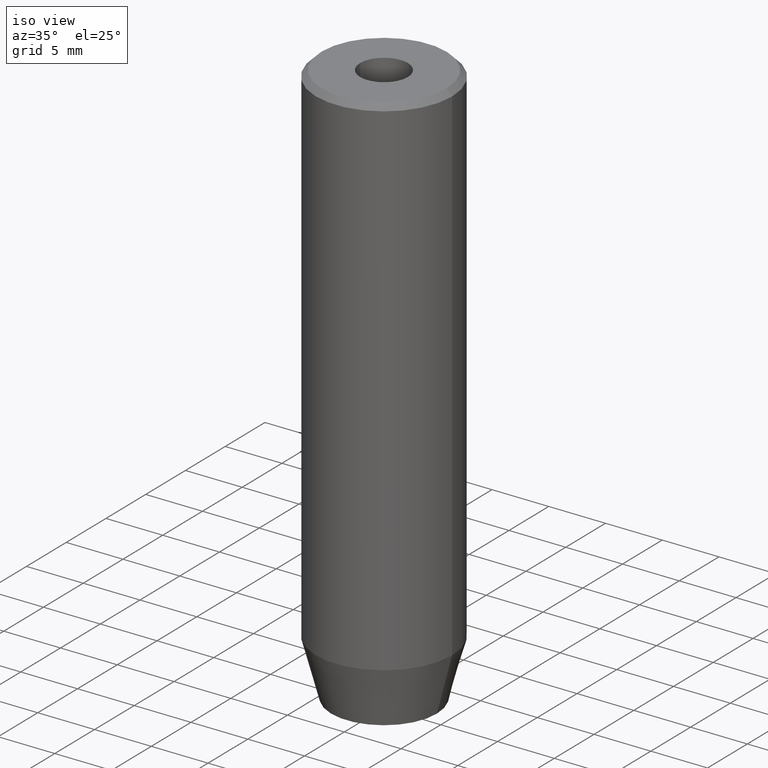
[diagram: clean part render]
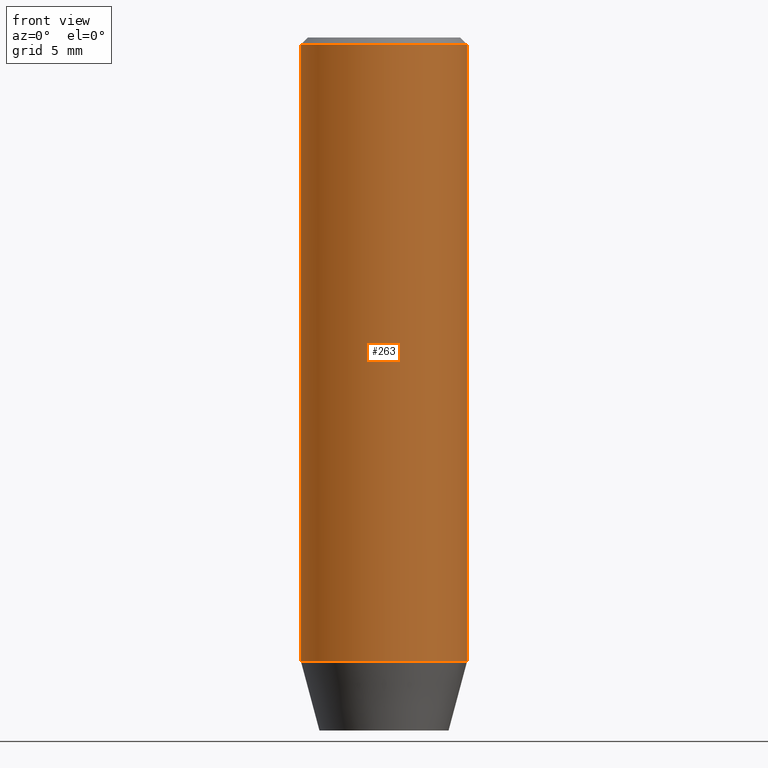
[diagram: tour spotlight — one face highlighted and labeled with its STEP entity id]
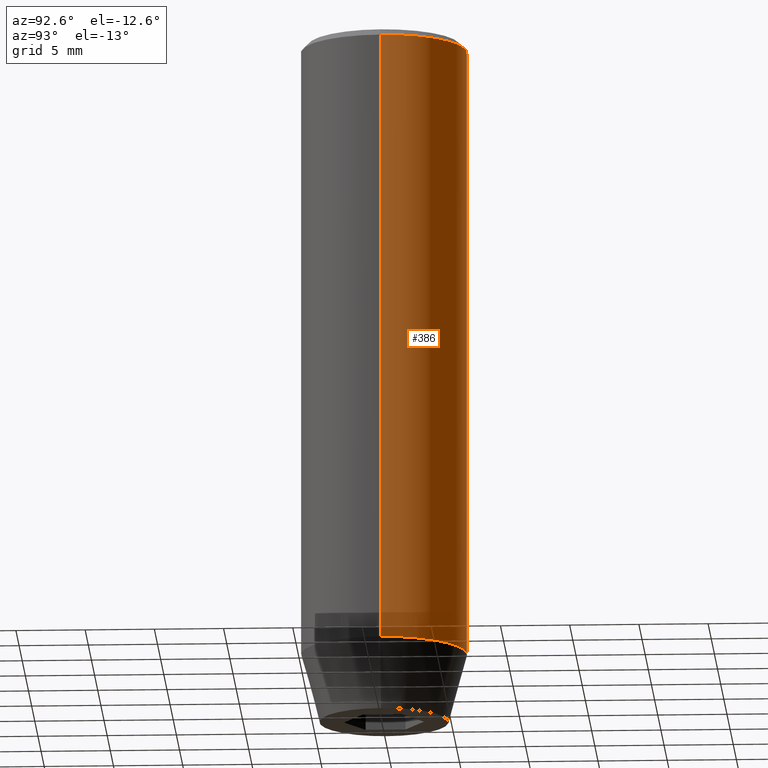
[diagram: tour spotlight — one face highlighted and labeled with its STEP entity id]
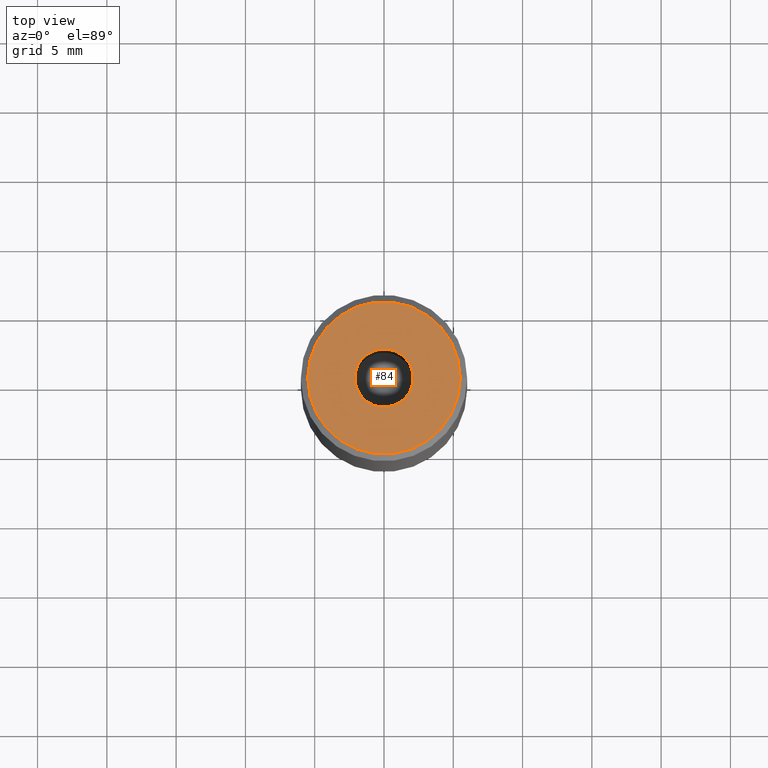
[diagram: tour spotlight — one face highlighted and labeled with its STEP entity id]
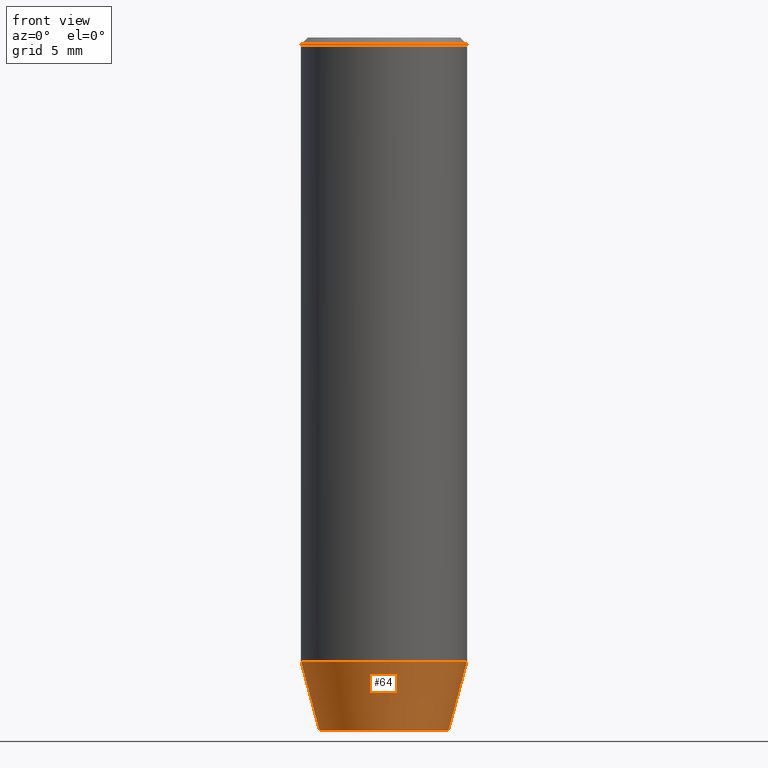
[diagram: tour spotlight — one face highlighted and labeled with its STEP entity id]
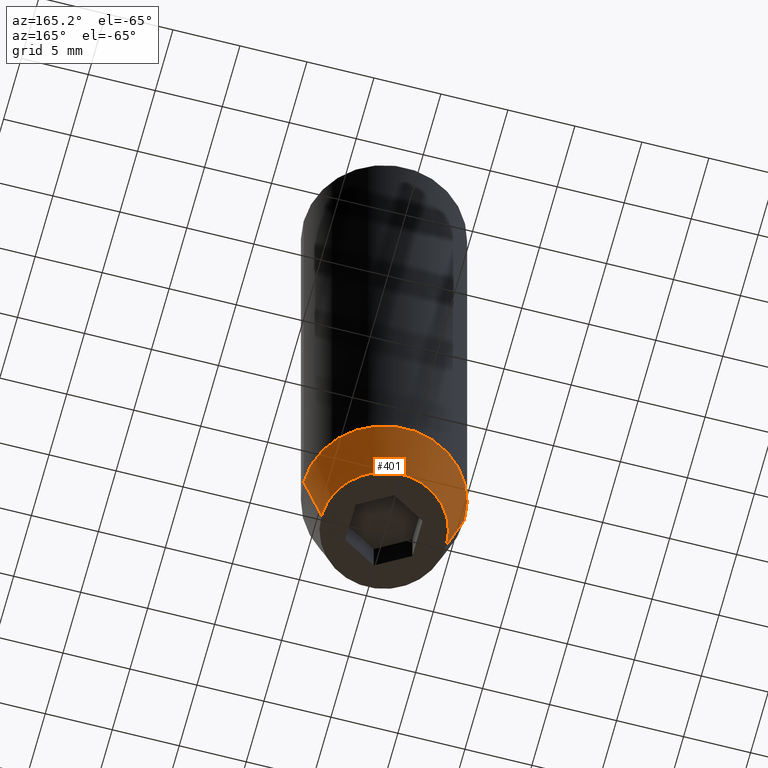
[diagram: tour spotlight — one face highlighted and labeled with its STEP entity id]
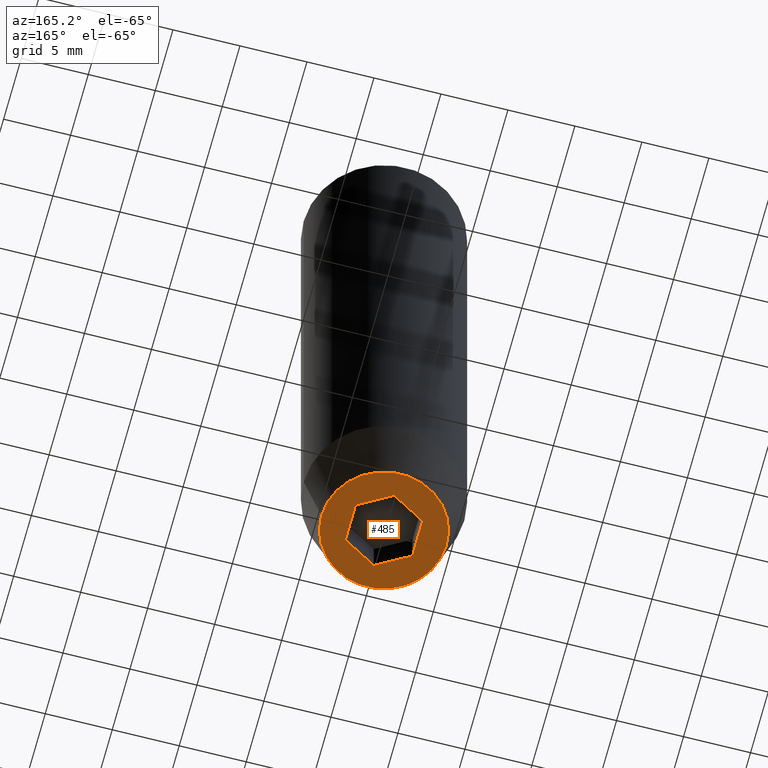
[diagram: tour spotlight — one face highlighted and labeled with its STEP entity id]
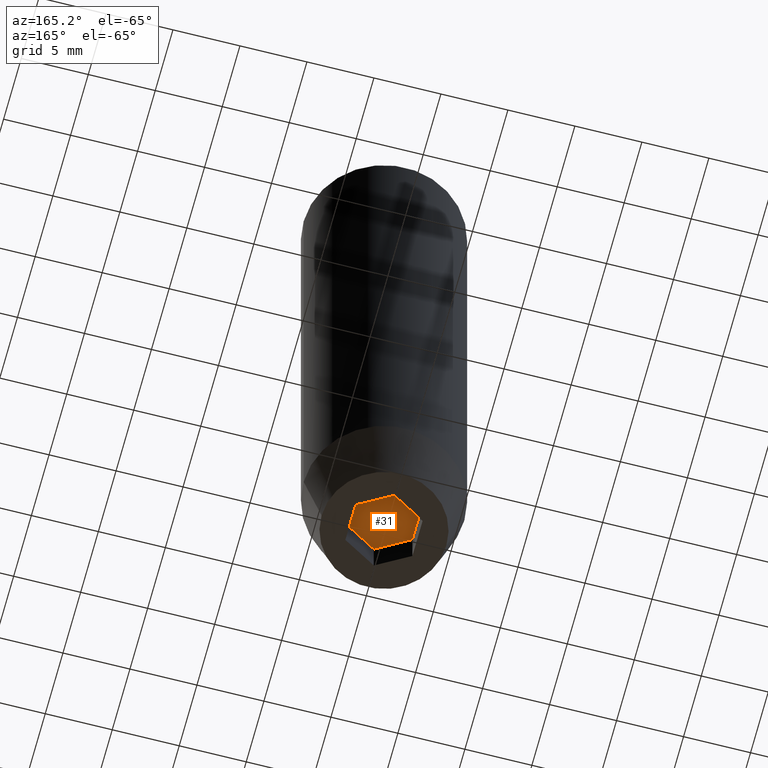
[diagram: tour spotlight — one face highlighted and labeled with its STEP entity id]
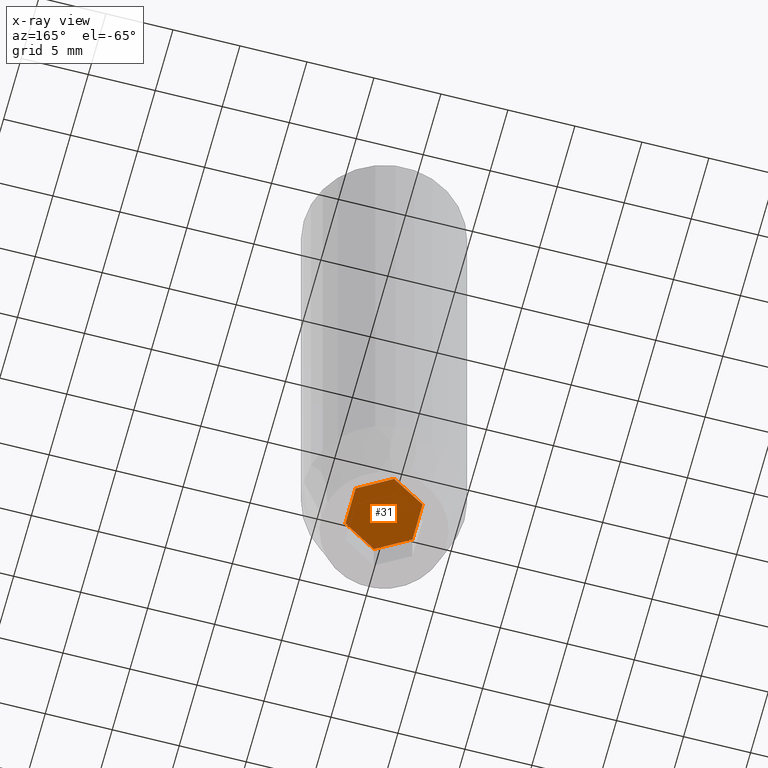
[diagram: x-ray of the same camera — body ghosted, this tour face saturated]
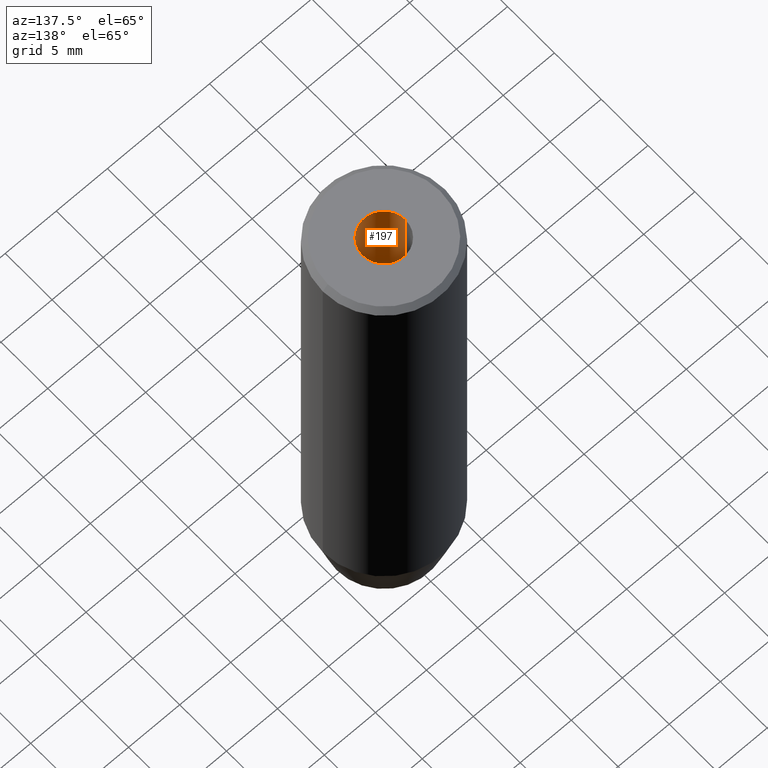
[diagram: tour spotlight — one face highlighted and labeled with its STEP entity id]
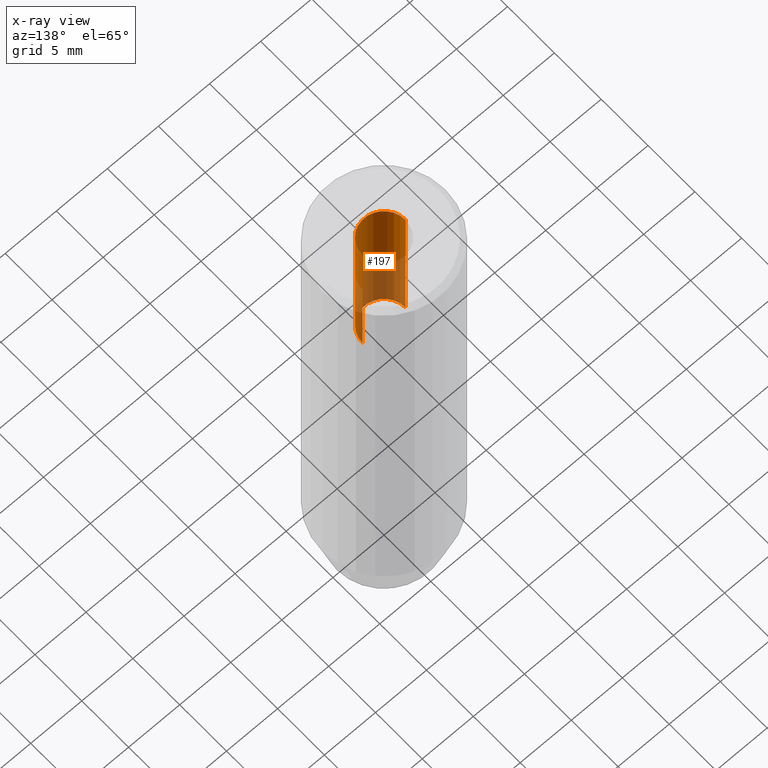
[diagram: x-ray of the same camera — body ghosted, this tour face saturated]
A machine part: a face-by-face anatomy tour. The part has 19 B-rep faces; the first image is the clean iso view, then the 8 largest visible faces are spotlighted one at a time (largest first), each with its STEP entity span.

Face 1 — front view, entity #263. In plain terms, the highlighted cylindrical surface (partial cylindrical patch) has radius 6 mm, axis along (-0, -0, 1).
Definition (entity closure, byte-faithful):
#1 = CARTESIAN_POINT ( 'NONE',  ( 0.000000000000000000, 0.000000000000000000, -45.00000000000000711 ) ) ;
#25 = VERTEX_POINT ( 'NONE', #429 ) ;
#41 = EDGE_CURVE ( 'NONE', #25, #370, #211, .T. ) ;
#49 = CIRCLE ( 'NONE', #129, 6.000000000000000000 ) ;
#51 = CARTESIAN_POINT ( 'NONE',  ( 0.000000000000000000, 0.000000000000000000, 0.000000000000000000 ) ) ;
#75 = AXIS2_PLACEMENT_3D ( 'NONE', #1, #186, #408 ) ;
#103 = CYLINDRICAL_SURFACE ( 'NONE', #538, 6.000000000000000000 ) ;
#112 = DIRECTION ( 'NONE',  ( 1.000000000000000000, 0.000000000000000000, 0.000000000000000000 ) ) ;
#124 = CARTESIAN_POINT ( 'NONE',  ( 0.000000000000000000, 0.000000000000000000, -0.5000000000000099920 ) ) ;
#129 = AXIS2_PLACEMENT_3D ( 'NONE', #124, #467, #112 ) ;
#176 = LINE ( 'NONE', #350, #514 ) ;
#186 = DIRECTION ( 'NONE',  ( -0.000000000000000000, -0.000000000000000000, 1.000000000000000000 ) ) ;
#188 = CARTESIAN_POINT ( 'NONE',  ( -6.000000000000000000, 7.347880794884119736E-16, -0.5000000000000099920 ) ) ;
#198 = VERTEX_POINT ( 'NONE', #578 ) ;
#208 = DIRECTION ( 'NONE',  ( -0.000000000000000000, -0.000000000000000000, 1.000000000000000000 ) ) ;
#211 = LINE ( 'NONE', #518, #234 ) ;
#234 = VECTOR ( 'NONE', #208, 1000.000000000000000 ) ;
#251 = ORIENTED_EDGE ( 'NONE', *, *, #510, .T. ) ;
#262 = ORIENTED_EDGE ( 'NONE', *, *, #379, .T. ) ;
#263 = ADVANCED_FACE ( 'NONE', ( #316 ), #103, .T. ) ;
#273 = ORIENTED_EDGE ( 'NONE', *, *, #395, .T. ) ;
#316 = FACE_OUTER_BOUND ( 'NONE', #453, .T. ) ;
#330 = CIRCLE ( 'NONE', #75, 6.000000000000000000 ) ;
#350 = CARTESIAN_POINT ( 'NONE',  ( 6.000000000000000000, 0.000000000000000000, 0.000000000000000000 ) ) ;
#370 = VERTEX_POINT ( 'NONE', #188 ) ;
#379 = EDGE_CURVE ( 'NONE', #25, #478, #330, .T. ) ;
#380 = CARTESIAN_POINT ( 'NONE',  ( 6.000000000000000000, 0.000000000000000000, -45.00000000000000711 ) ) ;
#395 = EDGE_CURVE ( 'NONE', #198, #370, #49, .T. ) ;
#405 = ORIENTED_EDGE ( 'NONE', *, *, #41, .F. ) ;
#408 = DIRECTION ( 'NONE',  ( 1.000000000000000000, 0.000000000000000000, 0.000000000000000000 ) ) ;
#429 = CARTESIAN_POINT ( 'NONE',  ( -6.000000000000000000, 7.347880794884119736E-16, -45.00000000000000711 ) ) ;
#450 = DIRECTION ( 'NONE',  ( 1.000000000000000000, 0.000000000000000000, 0.000000000000000000 ) ) ;
#453 = EDGE_LOOP ( 'NONE', ( #405, #262, #251, #273 ) ) ;
#455 = DIRECTION ( 'NONE',  ( -0.000000000000000000, -0.000000000000000000, 1.000000000000000000 ) ) ;
#467 = DIRECTION ( 'NONE',  ( 0.000000000000000000, 0.000000000000000000, -1.000000000000000000 ) ) ;
#478 = VERTEX_POINT ( 'NONE', #380 ) ;
#487 = DIRECTION ( 'NONE',  ( -0.000000000000000000, -0.000000000000000000, 1.000000000000000000 ) ) ;
#510 = EDGE_CURVE ( 'NONE', #478, #198, #176, .T. ) ;
#514 = VECTOR ( 'NONE', #487, 1000.000000000000000 ) ;
#518 = CARTESIAN_POINT ( 'NONE',  ( -6.000000000000000000, 7.347880794884119736E-16, 0.000000000000000000 ) ) ;
#538 = AXIS2_PLACEMENT_3D ( 'NONE', #51, #455, #450 ) ;
#578 = CARTESIAN_POINT ( 'NONE',  ( 6.000000000000000000, 0.000000000000000000, -0.5000000000000099920 ) ) ;

Face 2 — auxiliary view, entity #386. In plain terms, the highlighted cylindrical surface (partial cylindrical patch) has radius 6 mm, axis along (-0, -0, 1).
Definition (entity closure, byte-faithful):
#2 = ORIENTED_EDGE ( 'NONE', *, *, #275, .T. ) ;
#11 = DIRECTION ( 'NONE',  ( 1.000000000000000000, 0.000000000000000000, 0.000000000000000000 ) ) ;
#19 = AXIS2_PLACEMENT_3D ( 'NONE', #543, #144, #321 ) ;
#25 = VERTEX_POINT ( 'NONE', #429 ) ;
#39 = CIRCLE ( 'NONE', #19, 6.000000000000000000 ) ;
#41 = EDGE_CURVE ( 'NONE', #25, #370, #211, .T. ) ;
#95 = FACE_OUTER_BOUND ( 'NONE', #360, .T. ) ;
#144 = DIRECTION ( 'NONE',  ( 0.000000000000000000, 0.000000000000000000, -1.000000000000000000 ) ) ;
#176 = LINE ( 'NONE', #350, #514 ) ;
#188 = CARTESIAN_POINT ( 'NONE',  ( -6.000000000000000000, 7.347880794884119736E-16, -0.5000000000000099920 ) ) ;
#190 = DIRECTION ( 'NONE',  ( -0.000000000000000000, -0.000000000000000000, 1.000000000000000000 ) ) ;
#192 = CIRCLE ( 'NONE', #378, 6.000000000000000000 ) ;
#195 = DIRECTION ( 'NONE',  ( -0.000000000000000000, -0.000000000000000000, 1.000000000000000000 ) ) ;
#198 = VERTEX_POINT ( 'NONE', #578 ) ;
#208 = DIRECTION ( 'NONE',  ( -0.000000000000000000, -0.000000000000000000, 1.000000000000000000 ) ) ;
#211 = LINE ( 'NONE', #518, #234 ) ;
#234 = VECTOR ( 'NONE', #208, 1000.000000000000000 ) ;
#257 = EDGE_CURVE ( 'NONE', #370, #198, #39, .T. ) ;
#272 = CARTESIAN_POINT ( 'NONE',  ( 0.000000000000000000, 0.000000000000000000, 0.000000000000000000 ) ) ;
#275 = EDGE_CURVE ( 'NONE', #478, #25, #192, .T. ) ;
#277 = CARTESIAN_POINT ( 'NONE',  ( 0.000000000000000000, 0.000000000000000000, -45.00000000000000711 ) ) ;
#280 = ORIENTED_EDGE ( 'NONE', *, *, #41, .T. ) ;
#314 = CYLINDRICAL_SURFACE ( 'NONE', #347, 6.000000000000000000 ) ;
#321 = DIRECTION ( 'NONE',  ( 1.000000000000000000, 0.000000000000000000, 0.000000000000000000 ) ) ;
#347 = AXIS2_PLACEMENT_3D ( 'NONE', #272, #190, #479 ) ;
#350 = CARTESIAN_POINT ( 'NONE',  ( 6.000000000000000000, 0.000000000000000000, 0.000000000000000000 ) ) ;
#360 = EDGE_LOOP ( 'NONE', ( #2, #280, #421, #504 ) ) ;
#370 = VERTEX_POINT ( 'NONE', #188 ) ;
#378 = AXIS2_PLACEMENT_3D ( 'NONE', #277, #195, #11 ) ;
#380 = CARTESIAN_POINT ( 'NONE',  ( 6.000000000000000000, 0.000000000000000000, -45.00000000000000711 ) ) ;
#386 = ADVANCED_FACE ( 'NONE', ( #95 ), #314, .T. ) ;
#421 = ORIENTED_EDGE ( 'NONE', *, *, #257, .T. ) ;
#429 = CARTESIAN_POINT ( 'NONE',  ( -6.000000000000000000, 7.347880794884119736E-16, -45.00000000000000711 ) ) ;
#478 = VERTEX_POINT ( 'NONE', #380 ) ;
#479 = DIRECTION ( 'NONE',  ( 1.000000000000000000, 0.000000000000000000, 0.000000000000000000 ) ) ;
#487 = DIRECTION ( 'NONE',  ( -0.000000000000000000, -0.000000000000000000, 1.000000000000000000 ) ) ;
#504 = ORIENTED_EDGE ( 'NONE', *, *, #510, .F. ) ;
#510 = EDGE_CURVE ( 'NONE', #478, #198, #176, .T. ) ;
#514 = VECTOR ( 'NONE', #487, 1000.000000000000000 ) ;
#518 = CARTESIAN_POINT ( 'NONE',  ( -6.000000000000000000, 7.347880794884119736E-16, 0.000000000000000000 ) ) ;
#543 = CARTESIAN_POINT ( 'NONE',  ( 0.000000000000000000, 0.000000000000000000, -0.5000000000000099920 ) ) ;
#578 = CARTESIAN_POINT ( 'NONE',  ( 6.000000000000000000, 0.000000000000000000, -0.5000000000000099920 ) ) ;

Face 3 — top view, entity #84. In plain terms, the highlighted planar face has unit normal (0, -0, 1).
Definition (entity closure, byte-faithful):
#27 = ORIENTED_EDGE ( 'NONE', *, *, #527, .T. ) ;
#32 = CIRCLE ( 'NONE', #224, 2.099999999999998757 ) ;
#44 = PLANE ( 'NONE',  #86 ) ;
#46 = CARTESIAN_POINT ( 'NONE',  ( 5.499999999999990230, 7.041719095097274963E-16, 0.000000000000000000 ) ) ;
#84 = ADVANCED_FACE ( 'NONE', ( #128, #488 ), #44, .T. ) ;
#86 = AXIS2_PLACEMENT_3D ( 'NONE', #581, #583, #486 ) ;
#108 = CARTESIAN_POINT ( 'NONE',  ( 0.000000000000000000, 0.000000000000000000, 0.000000000000000000 ) ) ;
#128 = FACE_BOUND ( 'NONE', #328, .T. ) ;
#156 = CIRCLE ( 'NONE', #256, 5.499999999999990230 ) ;
#173 = EDGE_CURVE ( 'NONE', #200, #454, #32, .T. ) ;
#175 = AXIS2_PLACEMENT_3D ( 'NONE', #108, #284, #461 ) ;
#177 = CARTESIAN_POINT ( 'NONE',  ( 2.099999999999998757, 0.000000000000000000, -1.990051048614449116E-16 ) ) ;
#189 = ORIENTED_EDGE ( 'NONE', *, *, #552, .F. ) ;
#193 = VERTEX_POINT ( 'NONE', #46 ) ;
#200 = VERTEX_POINT ( 'NONE', #177 ) ;
#224 = AXIS2_PLACEMENT_3D ( 'NONE', #265, #441, #311 ) ;
#240 = CARTESIAN_POINT ( 'NONE',  ( -2.099999999999998757, 2.571758278209439985E-16, -1.990051048614449116E-16 ) ) ;
#252 = CARTESIAN_POINT ( 'NONE',  ( 0.000000000000000000, 0.000000000000000000, 0.000000000000000000 ) ) ;
#256 = AXIS2_PLACEMENT_3D ( 'NONE', #252, #264, #439 ) ;
#264 = DIRECTION ( 'NONE',  ( -0.000000000000000000, -0.000000000000000000, 1.000000000000000000 ) ) ;
#265 = CARTESIAN_POINT ( 'NONE',  ( 0.000000000000000000, 0.000000000000000000, -1.990051048614449116E-16 ) ) ;
#267 = DIRECTION ( 'NONE',  ( 1.000000000000000000, 0.000000000000000000, 0.000000000000000000 ) ) ;
#284 = DIRECTION ( 'NONE',  ( -0.000000000000000000, -0.000000000000000000, 1.000000000000000000 ) ) ;
#300 = EDGE_LOOP ( 'NONE', ( #489, #27 ) ) ;
#301 = CIRCLE ( 'NONE', #175, 5.499999999999990230 ) ;
#311 = DIRECTION ( 'NONE',  ( 1.000000000000000000, 0.000000000000000000, 0.000000000000000000 ) ) ;
#328 = EDGE_LOOP ( 'NONE', ( #456, #189 ) ) ;
#342 = EDGE_CURVE ( 'NONE', #460, #193, #301, .T. ) ;
#355 = DIRECTION ( 'NONE',  ( -0.000000000000000000, -0.000000000000000000, 1.000000000000000000 ) ) ;
#399 = CARTESIAN_POINT ( 'NONE',  ( 0.000000000000000000, 0.000000000000000000, -1.990051048614449116E-16 ) ) ;
#404 = AXIS2_PLACEMENT_3D ( 'NONE', #399, #355, #267 ) ;
#439 = DIRECTION ( 'NONE',  ( 1.000000000000000000, 0.000000000000000000, 0.000000000000000000 ) ) ;
#441 = DIRECTION ( 'NONE',  ( -0.000000000000000000, -0.000000000000000000, 1.000000000000000000 ) ) ;
#454 = VERTEX_POINT ( 'NONE', #240 ) ;
#456 = ORIENTED_EDGE ( 'NONE', *, *, #173, .F. ) ;
#460 = VERTEX_POINT ( 'NONE', #517 ) ;
#461 = DIRECTION ( 'NONE',  ( 1.000000000000000000, 0.000000000000000000, 0.000000000000000000 ) ) ;
#462 = CIRCLE ( 'NONE', #404, 2.099999999999998757 ) ;
#486 = DIRECTION ( 'NONE',  ( 1.000000000000000000, 0.000000000000000000, 0.000000000000000000 ) ) ;
#488 = FACE_OUTER_BOUND ( 'NONE', #300, .T. ) ;
#489 = ORIENTED_EDGE ( 'NONE', *, *, #342, .T. ) ;
#517 = CARTESIAN_POINT ( 'NONE',  ( -5.499999999999990230, 0.000000000000000000, 0.000000000000000000 ) ) ;
#527 = EDGE_CURVE ( 'NONE', #193, #460, #156, .T. ) ;
#552 = EDGE_CURVE ( 'NONE', #454, #200, #462, .T. ) ;
#581 = CARTESIAN_POINT ( 'NONE',  ( 0.000000000000000000, 0.000000000000000000, 0.000000000000000000 ) ) ;
#583 = DIRECTION ( 'NONE',  ( 0.000000000000000000, -0.000000000000000000, 1.000000000000000000 ) ) ;

Face 4 — front view, entity #64. In plain terms, the highlighted conical surface has half-angle 15 deg.
Definition (entity closure, byte-faithful):
#1 = CARTESIAN_POINT ( 'NONE',  ( 0.000000000000000000, 0.000000000000000000, -45.00000000000000711 ) ) ;
#4 = DIRECTION ( 'NONE',  ( -0.000000000000000000, -0.000000000000000000, 1.000000000000000000 ) ) ;
#13 = ORIENTED_EDGE ( 'NONE', *, *, #379, .F. ) ;
#25 = VERTEX_POINT ( 'NONE', #429 ) ;
#64 = ADVANCED_FACE ( 'NONE', ( #157 ), #286, .T. ) ;
#75 = AXIS2_PLACEMENT_3D ( 'NONE', #1, #186, #408 ) ;
#89 = ORIENTED_EDGE ( 'NONE', *, *, #315, .T. ) ;
#113 = DIRECTION ( 'NONE',  ( 1.000000000000000000, 0.000000000000000000, 0.000000000000000000 ) ) ;
#115 = EDGE_LOOP ( 'NONE', ( #495, #89, #227, #13 ) ) ;
#142 = LINE ( 'NONE', #464, #451 ) ;
#147 = LINE ( 'NONE', #511, #430 ) ;
#152 = DIRECTION ( 'NONE',  ( -0.2588190451025214611, 3.169619151431774186E-17, 0.9659258262890679791 ) ) ;
#153 = AXIS2_PLACEMENT_3D ( 'NONE', #525, #290, #113 ) ;
#155 = CARTESIAN_POINT ( 'NONE',  ( -4.660254037844382857, 6.527522992771886302E-16, -50.00000000000000000 ) ) ;
#157 = FACE_OUTER_BOUND ( 'NONE', #115, .T. ) ;
#166 = CIRCLE ( 'NONE', #266, 4.660254037844382857 ) ;
#183 = VERTEX_POINT ( 'NONE', #351 ) ;
#186 = DIRECTION ( 'NONE',  ( -0.000000000000000000, -0.000000000000000000, 1.000000000000000000 ) ) ;
#196 = DIRECTION ( 'NONE',  ( 0.2588190451025214611, 0.000000000000000000, 0.9659258262890679791 ) ) ;
#227 = ORIENTED_EDGE ( 'NONE', *, *, #358, .T. ) ;
#229 = CARTESIAN_POINT ( 'NONE',  ( 0.000000000000000000, 0.000000000000000000, -50.00000000000000000 ) ) ;
#231 = DIRECTION ( 'NONE',  ( 1.000000000000000000, 0.000000000000000000, 0.000000000000000000 ) ) ;
#246 = EDGE_CURVE ( 'NONE', #468, #25, #147, .T. ) ;
#266 = AXIS2_PLACEMENT_3D ( 'NONE', #229, #4, #231 ) ;
#286 = CONICAL_SURFACE ( 'NONE', #153, 6.000000000000000000, 0.2617993877991502405 ) ;
#290 = DIRECTION ( 'NONE',  ( -0.000000000000000000, -0.000000000000000000, 1.000000000000000000 ) ) ;
#315 = EDGE_CURVE ( 'NONE', #468, #183, #166, .T. ) ;
#330 = CIRCLE ( 'NONE', #75, 6.000000000000000000 ) ;
#351 = CARTESIAN_POINT ( 'NONE',  ( 4.660254037844382857, 0.000000000000000000, -50.00000000000000000 ) ) ;
#358 = EDGE_CURVE ( 'NONE', #183, #478, #142, .T. ) ;
#379 = EDGE_CURVE ( 'NONE', #25, #478, #330, .T. ) ;
#380 = CARTESIAN_POINT ( 'NONE',  ( 6.000000000000000000, 0.000000000000000000, -45.00000000000000711 ) ) ;
#408 = DIRECTION ( 'NONE',  ( 1.000000000000000000, 0.000000000000000000, 0.000000000000000000 ) ) ;
#429 = CARTESIAN_POINT ( 'NONE',  ( -6.000000000000000000, 7.347880794884119736E-16, -45.00000000000000711 ) ) ;
#430 = VECTOR ( 'NONE', #152, 1000.000000000000114 ) ;
#451 = VECTOR ( 'NONE', #196, 1000.000000000000114 ) ;
#464 = CARTESIAN_POINT ( 'NONE',  ( 6.000000000000000000, 0.000000000000000000, -45.00000000000000711 ) ) ;
#468 = VERTEX_POINT ( 'NONE', #155 ) ;
#478 = VERTEX_POINT ( 'NONE', #380 ) ;
#495 = ORIENTED_EDGE ( 'NONE', *, *, #246, .F. ) ;
#511 = CARTESIAN_POINT ( 'NONE',  ( -6.000000000000000000, 7.347880794884119736E-16, -45.00000000000000711 ) ) ;
#525 = CARTESIAN_POINT ( 'NONE',  ( 0.000000000000000000, 0.000000000000000000, -45.00000000000000711 ) ) ;

Face 5 — auxiliary view, entity #401. In plain terms, the highlighted conical surface has half-angle 15 deg.
Definition (entity closure, byte-faithful):
#11 = DIRECTION ( 'NONE',  ( 1.000000000000000000, 0.000000000000000000, 0.000000000000000000 ) ) ;
#20 = ORIENTED_EDGE ( 'NONE', *, *, #275, .F. ) ;
#25 = VERTEX_POINT ( 'NONE', #429 ) ;
#47 = ORIENTED_EDGE ( 'NONE', *, *, #358, .F. ) ;
#142 = LINE ( 'NONE', #464, #451 ) ;
#145 = CIRCLE ( 'NONE', #471, 4.660254037844382857 ) ;
#147 = LINE ( 'NONE', #511, #430 ) ;
#152 = DIRECTION ( 'NONE',  ( -0.2588190451025214611, 3.169619151431774186E-17, 0.9659258262890679791 ) ) ;
#155 = CARTESIAN_POINT ( 'NONE',  ( -4.660254037844382857, 6.527522992771886302E-16, -50.00000000000000000 ) ) ;
#170 = EDGE_LOOP ( 'NONE', ( #493, #375, #20, #47 ) ) ;
#183 = VERTEX_POINT ( 'NONE', #351 ) ;
#192 = CIRCLE ( 'NONE', #378, 6.000000000000000000 ) ;
#195 = DIRECTION ( 'NONE',  ( -0.000000000000000000, -0.000000000000000000, 1.000000000000000000 ) ) ;
#196 = DIRECTION ( 'NONE',  ( 0.2588190451025214611, 0.000000000000000000, 0.9659258262890679791 ) ) ;
#204 = FACE_OUTER_BOUND ( 'NONE', #170, .T. ) ;
#246 = EDGE_CURVE ( 'NONE', #468, #25, #147, .T. ) ;
#247 = DIRECTION ( 'NONE',  ( 1.000000000000000000, 0.000000000000000000, 0.000000000000000000 ) ) ;
#275 = EDGE_CURVE ( 'NONE', #478, #25, #192, .T. ) ;
#277 = CARTESIAN_POINT ( 'NONE',  ( 0.000000000000000000, 0.000000000000000000, -45.00000000000000711 ) ) ;
#293 = AXIS2_PLACEMENT_3D ( 'NONE', #524, #388, #417 ) ;
#294 = DIRECTION ( 'NONE',  ( -0.000000000000000000, -0.000000000000000000, 1.000000000000000000 ) ) ;
#351 = CARTESIAN_POINT ( 'NONE',  ( 4.660254037844382857, 0.000000000000000000, -50.00000000000000000 ) ) ;
#358 = EDGE_CURVE ( 'NONE', #183, #478, #142, .T. ) ;
#375 = ORIENTED_EDGE ( 'NONE', *, *, #246, .T. ) ;
#378 = AXIS2_PLACEMENT_3D ( 'NONE', #277, #195, #11 ) ;
#380 = CARTESIAN_POINT ( 'NONE',  ( 6.000000000000000000, 0.000000000000000000, -45.00000000000000711 ) ) ;
#388 = DIRECTION ( 'NONE',  ( -0.000000000000000000, -0.000000000000000000, 1.000000000000000000 ) ) ;
#401 = ADVANCED_FACE ( 'NONE', ( #204 ), #530, .T. ) ;
#417 = DIRECTION ( 'NONE',  ( 1.000000000000000000, 0.000000000000000000, 0.000000000000000000 ) ) ;
#418 = EDGE_CURVE ( 'NONE', #183, #468, #145, .T. ) ;
#429 = CARTESIAN_POINT ( 'NONE',  ( -6.000000000000000000, 7.347880794884119736E-16, -45.00000000000000711 ) ) ;
#430 = VECTOR ( 'NONE', #152, 1000.000000000000114 ) ;
#451 = VECTOR ( 'NONE', #196, 1000.000000000000114 ) ;
#464 = CARTESIAN_POINT ( 'NONE',  ( 6.000000000000000000, 0.000000000000000000, -45.00000000000000711 ) ) ;
#468 = VERTEX_POINT ( 'NONE', #155 ) ;
#471 = AXIS2_PLACEMENT_3D ( 'NONE', #477, #294, #247 ) ;
#477 = CARTESIAN_POINT ( 'NONE',  ( 0.000000000000000000, 0.000000000000000000, -50.00000000000000000 ) ) ;
#478 = VERTEX_POINT ( 'NONE', #380 ) ;
#493 = ORIENTED_EDGE ( 'NONE', *, *, #418, .T. ) ;
#511 = CARTESIAN_POINT ( 'NONE',  ( -6.000000000000000000, 7.347880794884119736E-16, -45.00000000000000711 ) ) ;
#524 = CARTESIAN_POINT ( 'NONE',  ( 0.000000000000000000, 0.000000000000000000, -45.00000000000000711 ) ) ;
#530 = CONICAL_SURFACE ( 'NONE', #293, 6.000000000000000000, 0.2617993877991502405 ) ;

Face 6 — auxiliary view, entity #485. In plain terms, the highlighted planar face has unit normal (0, 0, -1).
Definition (entity closure, byte-faithful):
#4 = DIRECTION ( 'NONE',  ( -0.000000000000000000, -0.000000000000000000, 1.000000000000000000 ) ) ;
#7 = VERTEX_POINT ( 'NONE', #560 ) ;
#8 = ORIENTED_EDGE ( 'NONE', *, *, #180, .F. ) ;
#24 = FACE_OUTER_BOUND ( 'NONE', #366, .T. ) ;
#38 = CARTESIAN_POINT ( 'NONE',  ( 1.250000000000000222, 2.165063509461096825, -50.00000000000000000 ) ) ;
#50 = VERTEX_POINT ( 'NONE', #566 ) ;
#54 = VERTEX_POINT ( 'NONE', #516 ) ;
#63 = ORIENTED_EDGE ( 'NONE', *, *, #121, .F. ) ;
#114 = EDGE_CURVE ( 'NONE', #54, #7, #532, .T. ) ;
#118 = VECTOR ( 'NONE', #572, 1000.000000000000114 ) ;
#121 = EDGE_CURVE ( 'NONE', #276, #54, #346, .T. ) ;
#125 = ORIENTED_EDGE ( 'NONE', *, *, #315, .F. ) ;
#126 = VERTEX_POINT ( 'NONE', #222 ) ;
#138 = AXIS2_PLACEMENT_3D ( 'NONE', #519, #310, #573 ) ;
#145 = CIRCLE ( 'NONE', #471, 4.660254037844382857 ) ;
#155 = CARTESIAN_POINT ( 'NONE',  ( -4.660254037844382857, 6.527522992771886302E-16, -50.00000000000000000 ) ) ;
#162 = PLANE ( 'NONE',  #138 ) ;
#166 = CIRCLE ( 'NONE', #266, 4.660254037844382857 ) ;
#171 = CARTESIAN_POINT ( 'NONE',  ( 1.249999999999999778, -2.165063509461096380, -50.00000000000000000 ) ) ;
#180 = EDGE_CURVE ( 'NONE', #50, #276, #528, .T. ) ;
#183 = VERTEX_POINT ( 'NONE', #351 ) ;
#187 = ORIENTED_EDGE ( 'NONE', *, *, #220, .F. ) ;
#203 = ORIENTED_EDGE ( 'NONE', *, *, #283, .F. ) ;
#206 = ORIENTED_EDGE ( 'NONE', *, *, #418, .F. ) ;
#220 = EDGE_CURVE ( 'NONE', #7, #126, #491, .T. ) ;
#222 = CARTESIAN_POINT ( 'NONE',  ( -2.500000000000000444, -1.443375672974064328, -50.00000000000000000 ) ) ;
#229 = CARTESIAN_POINT ( 'NONE',  ( 0.000000000000000000, 0.000000000000000000, -50.00000000000000000 ) ) ;
#231 = DIRECTION ( 'NONE',  ( 1.000000000000000000, 0.000000000000000000, 0.000000000000000000 ) ) ;
#247 = DIRECTION ( 'NONE',  ( 1.000000000000000000, 0.000000000000000000, 0.000000000000000000 ) ) ;
#254 = VECTOR ( 'NONE', #531, 1000.000000000000000 ) ;
#266 = AXIS2_PLACEMENT_3D ( 'NONE', #229, #4, #231 ) ;
#271 = LINE ( 'NONE', #411, #482 ) ;
#276 = VERTEX_POINT ( 'NONE', #500 ) ;
#283 = EDGE_CURVE ( 'NONE', #324, #50, #553, .T. ) ;
#294 = DIRECTION ( 'NONE',  ( -0.000000000000000000, -0.000000000000000000, 1.000000000000000000 ) ) ;
#309 = ORIENTED_EDGE ( 'NONE', *, *, #114, .F. ) ;
#310 = DIRECTION ( 'NONE',  ( 0.000000000000000000, 0.000000000000000000, -1.000000000000000000 ) ) ;
#315 = EDGE_CURVE ( 'NONE', #468, #183, #166, .T. ) ;
#324 = VERTEX_POINT ( 'NONE', #508 ) ;
#346 = LINE ( 'NONE', #435, #368 ) ;
#349 = DIRECTION ( 'NONE',  ( -0.8660254037844387076, -0.5000000000000001110, 0.000000000000000000 ) ) ;
#351 = CARTESIAN_POINT ( 'NONE',  ( 4.660254037844382857, 0.000000000000000000, -50.00000000000000000 ) ) ;
#359 = DIRECTION ( 'NONE',  ( 0.8660254037844385966, 0.5000000000000001110, 0.000000000000000000 ) ) ;
#366 = EDGE_LOOP ( 'NONE', ( #206, #125 ) ) ;
#368 = VECTOR ( 'NONE', #535, 1000.000000000000000 ) ;
#381 = EDGE_LOOP ( 'NONE', ( #203, #426, #187, #309, #63, #8 ) ) ;
#394 = VECTOR ( 'NONE', #359, 1000.000000000000000 ) ;
#411 = CARTESIAN_POINT ( 'NONE',  ( -2.500000000000000444, 0.000000000000000000, -50.00000000000000000 ) ) ;
#414 = DIRECTION ( 'NONE',  ( 0.000000000000000000, 1.000000000000000000, 0.000000000000000000 ) ) ;
#418 = EDGE_CURVE ( 'NONE', #183, #468, #145, .T. ) ;
#426 = ORIENTED_EDGE ( 'NONE', *, *, #579, .F. ) ;
#435 = CARTESIAN_POINT ( 'NONE',  ( 2.500000000000000000, 0.000000000000000000, -50.00000000000000000 ) ) ;
#446 = CARTESIAN_POINT ( 'NONE',  ( -1.249999999999999556, -2.165063509461096825, -50.00000000000000000 ) ) ;
#468 = VERTEX_POINT ( 'NONE', #155 ) ;
#471 = AXIS2_PLACEMENT_3D ( 'NONE', #477, #294, #247 ) ;
#477 = CARTESIAN_POINT ( 'NONE',  ( 0.000000000000000000, 0.000000000000000000, -50.00000000000000000 ) ) ;
#482 = VECTOR ( 'NONE', #414, 1000.000000000000000 ) ;
#485 = ADVANCED_FACE ( 'NONE', ( #559, #24 ), #162, .T. ) ;
#491 = LINE ( 'NONE', #446, #118 ) ;
#500 = CARTESIAN_POINT ( 'NONE',  ( 2.500000000000000000, 1.443375672974064328, -50.00000000000000000 ) ) ;
#508 = CARTESIAN_POINT ( 'NONE',  ( -2.500000000000000444, 1.443375672974064772, -50.00000000000000000 ) ) ;
#516 = CARTESIAN_POINT ( 'NONE',  ( 2.500000000000000000, -1.443375672974064106, -50.00000000000000000 ) ) ;
#519 = CARTESIAN_POINT ( 'NONE',  ( 0.000000000000000000, 4.660254037844382857, -50.00000000000000000 ) ) ;
#522 = VECTOR ( 'NONE', #349, 999.9999999999998863 ) ;
#528 = LINE ( 'NONE', #38, #254 ) ;
#531 = DIRECTION ( 'NONE',  ( 0.8660254037844385966, -0.5000000000000001110, 0.000000000000000000 ) ) ;
#532 = LINE ( 'NONE', #171, #522 ) ;
#535 = DIRECTION ( 'NONE',  ( 0.000000000000000000, -1.000000000000000000, 0.000000000000000000 ) ) ;
#551 = CARTESIAN_POINT ( 'NONE',  ( -1.250000000000000444, 2.165063509461097269, -50.00000000000000000 ) ) ;
#553 = LINE ( 'NONE', #551, #394 ) ;
#559 = FACE_BOUND ( 'NONE', #381, .T. ) ;
#560 = CARTESIAN_POINT ( 'NONE',  ( 0.000000000000000000, -2.886751345948128211, -50.00000000000000000 ) ) ;
#566 = CARTESIAN_POINT ( 'NONE',  ( -1.084202172485504434E-16, 2.886751345948129543, -50.00000000000000000 ) ) ;
#572 = DIRECTION ( 'NONE',  ( -0.8660254037844387076, 0.4999999999999998890, 0.000000000000000000 ) ) ;
#573 = DIRECTION ( 'NONE',  ( -1.000000000000000000, 0.000000000000000000, -0.000000000000000000 ) ) ;
#579 = EDGE_CURVE ( 'NONE', #126, #324, #271, .T. ) ;

Face 7 — auxiliary view, entity #31. An x-ray twin of the same camera follows (body ghosted, this face saturated) — the face is partly hidden behind the body. In plain terms, the highlighted planar face has unit normal (0, 0, -1).
Definition (entity closure, byte-faithful):
#5 = EDGE_LOOP ( 'NONE', ( #512, #327, #334, #270, #83, #542 ) ) ;
#6 = CARTESIAN_POINT ( 'NONE',  ( 2.500000000000000000, -1.443375672974064106, -47.20000000000000284 ) ) ;
#10 = AXIS2_PLACEMENT_3D ( 'NONE', #69, #248, #34 ) ;
#31 = ADVANCED_FACE ( 'NONE', ( #163 ), #480, .T. ) ;
#34 = DIRECTION ( 'NONE',  ( -1.000000000000000000, 0.000000000000000000, -0.000000000000000000 ) ) ;
#37 = LINE ( 'NONE', #261, #403 ) ;
#42 = CARTESIAN_POINT ( 'NONE',  ( -1.250000000000000444, 2.165063509461097269, -47.20000000000000284 ) ) ;
#66 = VECTOR ( 'NONE', #223, 1000.000000000000000 ) ;
#69 = CARTESIAN_POINT ( 'NONE',  ( 0.000000000000000000, 0.000000000000000000, -47.20000000000000284 ) ) ;
#79 = DIRECTION ( 'NONE',  ( 0.8660254037844385966, 0.5000000000000001110, 0.000000000000000000 ) ) ;
#83 = ORIENTED_EDGE ( 'NONE', *, *, #100, .T. ) ;
#85 = CARTESIAN_POINT ( 'NONE',  ( -2.500000000000000444, -1.443375672974064328, -47.20000000000000284 ) ) ;
#87 = CARTESIAN_POINT ( 'NONE',  ( -1.084202172485504434E-16, 2.886751345948129543, -47.20000000000000284 ) ) ;
#100 = EDGE_CURVE ( 'NONE', #554, #161, #37, .T. ) ;
#127 = CARTESIAN_POINT ( 'NONE',  ( -2.500000000000000444, 1.443375672974064772, -47.20000000000000284 ) ) ;
#132 = EDGE_CURVE ( 'NONE', #161, #570, #182, .T. ) ;
#141 = LINE ( 'NONE', #42, #274 ) ;
#150 = DIRECTION ( 'NONE',  ( 0.000000000000000000, -1.000000000000000000, 0.000000000000000000 ) ) ;
#161 = VERTEX_POINT ( 'NONE', #85 ) ;
#163 = FACE_OUTER_BOUND ( 'NONE', #5, .T. ) ;
#164 = EDGE_CURVE ( 'NONE', #570, #549, #141, .T. ) ;
#179 = CARTESIAN_POINT ( 'NONE',  ( 1.249999999999999778, -2.165063509461096380, -47.20000000000000284 ) ) ;
#182 = LINE ( 'NONE', #400, #66 ) ;
#199 = CARTESIAN_POINT ( 'NONE',  ( 1.250000000000000222, 2.165063509461096825, -47.20000000000000284 ) ) ;
#205 = EDGE_CURVE ( 'NONE', #385, #554, #398, .T. ) ;
#223 = DIRECTION ( 'NONE',  ( 0.000000000000000000, 1.000000000000000000, 0.000000000000000000 ) ) ;
#239 = LINE ( 'NONE', #199, #567 ) ;
#248 = DIRECTION ( 'NONE',  ( 0.000000000000000000, 0.000000000000000000, -1.000000000000000000 ) ) ;
#261 = CARTESIAN_POINT ( 'NONE',  ( -1.249999999999999556, -2.165063509461096825, -47.20000000000000284 ) ) ;
#270 = ORIENTED_EDGE ( 'NONE', *, *, #205, .T. ) ;
#274 = VECTOR ( 'NONE', #79, 1000.000000000000000 ) ;
#323 = EDGE_CURVE ( 'NONE', #407, #385, #412, .T. ) ;
#327 = ORIENTED_EDGE ( 'NONE', *, *, #465, .T. ) ;
#334 = ORIENTED_EDGE ( 'NONE', *, *, #323, .T. ) ;
#354 = DIRECTION ( 'NONE',  ( -0.8660254037844387076, -0.5000000000000001110, 0.000000000000000000 ) ) ;
#385 = VERTEX_POINT ( 'NONE', #6 ) ;
#398 = LINE ( 'NONE', #179, #575 ) ;
#400 = CARTESIAN_POINT ( 'NONE',  ( -2.500000000000000444, 0.000000000000000000, -47.20000000000000284 ) ) ;
#403 = VECTOR ( 'NONE', #443, 1000.000000000000114 ) ;
#407 = VERTEX_POINT ( 'NONE', #565 ) ;
#412 = LINE ( 'NONE', #541, #557 ) ;
#442 = CARTESIAN_POINT ( 'NONE',  ( 0.000000000000000000, -2.886751345948128211, -47.20000000000000284 ) ) ;
#443 = DIRECTION ( 'NONE',  ( -0.8660254037844387076, 0.4999999999999998890, 0.000000000000000000 ) ) ;
#465 = EDGE_CURVE ( 'NONE', #549, #407, #239, .T. ) ;
#480 = PLANE ( 'NONE',  #10 ) ;
#512 = ORIENTED_EDGE ( 'NONE', *, *, #164, .T. ) ;
#541 = CARTESIAN_POINT ( 'NONE',  ( 2.500000000000000000, 0.000000000000000000, -47.20000000000000284 ) ) ;
#542 = ORIENTED_EDGE ( 'NONE', *, *, #132, .T. ) ;
#549 = VERTEX_POINT ( 'NONE', #87 ) ;
#554 = VERTEX_POINT ( 'NONE', #442 ) ;
#557 = VECTOR ( 'NONE', #150, 1000.000000000000000 ) ;
#562 = DIRECTION ( 'NONE',  ( 0.8660254037844385966, -0.5000000000000001110, 0.000000000000000000 ) ) ;
#565 = CARTESIAN_POINT ( 'NONE',  ( 2.500000000000000000, 1.443375672974064328, -47.20000000000000284 ) ) ;
#567 = VECTOR ( 'NONE', #562, 1000.000000000000000 ) ;
#570 = VERTEX_POINT ( 'NONE', #127 ) ;
#575 = VECTOR ( 'NONE', #354, 999.9999999999998863 ) ;

Face 8 — auxiliary view, entity #197. An x-ray twin of the same camera follows (body ghosted, this face saturated) — the face is partly hidden behind the body. In plain terms, the highlighted cylindrical surface (edge-blend (fillet) strip) has radius 2.1 mm, axis along (-0, -0, 1).
Definition (entity closure, byte-faithful):
#3 = EDGE_CURVE ( 'NONE', #278, #454, #384, .T. ) ;
#52 = ORIENTED_EDGE ( 'NONE', *, *, #367, .F. ) ;
#62 = DIRECTION ( 'NONE',  ( -0.000000000000000000, -0.000000000000000000, 1.000000000000000000 ) ) ;
#99 = CARTESIAN_POINT ( 'NONE',  ( -2.099999999999996980, 2.571758278209438013E-16, -15.00000000000000000 ) ) ;
#110 = AXIS2_PLACEMENT_3D ( 'NONE', #131, #216, #397 ) ;
#111 = VERTEX_POINT ( 'NONE', #174 ) ;
#117 = VECTOR ( 'NONE', #432, 1000.000000000000000 ) ;
#131 = CARTESIAN_POINT ( 'NONE',  ( 0.000000000000000000, 0.000000000000000000, 0.000000000000000000 ) ) ;
#168 = CARTESIAN_POINT ( 'NONE',  ( 2.099999999999997868, 0.000000000000000000, 0.000000000000000000 ) ) ;
#174 = CARTESIAN_POINT ( 'NONE',  ( 2.099999999999996980, 0.000000000000000000, -15.00000000000000000 ) ) ;
#177 = CARTESIAN_POINT ( 'NONE',  ( 2.099999999999998757, 0.000000000000000000, -1.990051048614449116E-16 ) ) ;
#197 = ADVANCED_FACE ( 'NONE', ( #259 ), #306, .F. ) ;
#200 = VERTEX_POINT ( 'NONE', #177 ) ;
#216 = DIRECTION ( 'NONE',  ( -0.000000000000000000, -0.000000000000000000, 1.000000000000000000 ) ) ;
#232 = ORIENTED_EDGE ( 'NONE', *, *, #457, .F. ) ;
#235 = VECTOR ( 'NONE', #343, 1000.000000000000000 ) ;
#240 = CARTESIAN_POINT ( 'NONE',  ( -2.099999999999998757, 2.571758278209439985E-16, -1.990051048614449116E-16 ) ) ;
#259 = FACE_OUTER_BOUND ( 'NONE', #502, .T. ) ;
#267 = DIRECTION ( 'NONE',  ( 1.000000000000000000, 0.000000000000000000, 0.000000000000000000 ) ) ;
#278 = VERTEX_POINT ( 'NONE', #99 ) ;
#306 = CYLINDRICAL_SURFACE ( 'NONE', #110, 2.099999999999997868 ) ;
#318 = AXIS2_PLACEMENT_3D ( 'NONE', #329, #62, #402 ) ;
#329 = CARTESIAN_POINT ( 'NONE',  ( 0.000000000000000000, 0.000000000000000000, -15.00000000000000000 ) ) ;
#332 = CARTESIAN_POINT ( 'NONE',  ( -2.099999999999997868, 2.571758278209438999E-16, 0.000000000000000000 ) ) ;
#343 = DIRECTION ( 'NONE',  ( -0.000000000000000000, -0.000000000000000000, 1.000000000000000000 ) ) ;
#355 = DIRECTION ( 'NONE',  ( -0.000000000000000000, -0.000000000000000000, 1.000000000000000000 ) ) ;
#367 = EDGE_CURVE ( 'NONE', #278, #111, #585, .T. ) ;
#383 = LINE ( 'NONE', #168, #235 ) ;
#384 = LINE ( 'NONE', #332, #117 ) ;
#397 = DIRECTION ( 'NONE',  ( 1.000000000000000000, 0.000000000000000000, 0.000000000000000000 ) ) ;
#399 = CARTESIAN_POINT ( 'NONE',  ( 0.000000000000000000, 0.000000000000000000, -1.990051048614449116E-16 ) ) ;
#402 = DIRECTION ( 'NONE',  ( 1.000000000000000000, 0.000000000000000000, 0.000000000000000000 ) ) ;
#404 = AXIS2_PLACEMENT_3D ( 'NONE', #399, #355, #267 ) ;
#413 = ORIENTED_EDGE ( 'NONE', *, *, #552, .T. ) ;
#432 = DIRECTION ( 'NONE',  ( -0.000000000000000000, -0.000000000000000000, 1.000000000000000000 ) ) ;
#454 = VERTEX_POINT ( 'NONE', #240 ) ;
#457 = EDGE_CURVE ( 'NONE', #111, #200, #383, .T. ) ;
#462 = CIRCLE ( 'NONE', #404, 2.099999999999998757 ) ;
#474 = ORIENTED_EDGE ( 'NONE', *, *, #3, .T. ) ;
#502 = EDGE_LOOP ( 'NONE', ( #52, #474, #413, #232 ) ) ;
#552 = EDGE_CURVE ( 'NONE', #454, #200, #462, .T. ) ;
#585 = CIRCLE ( 'NONE', #318, 2.099999999999996980 ) ;